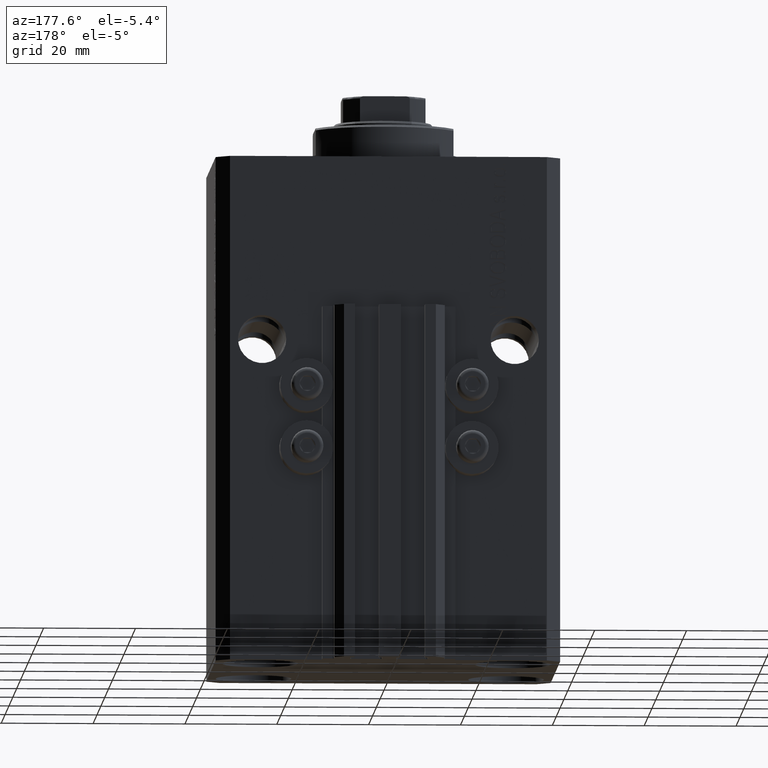
[diagram: clean part render]
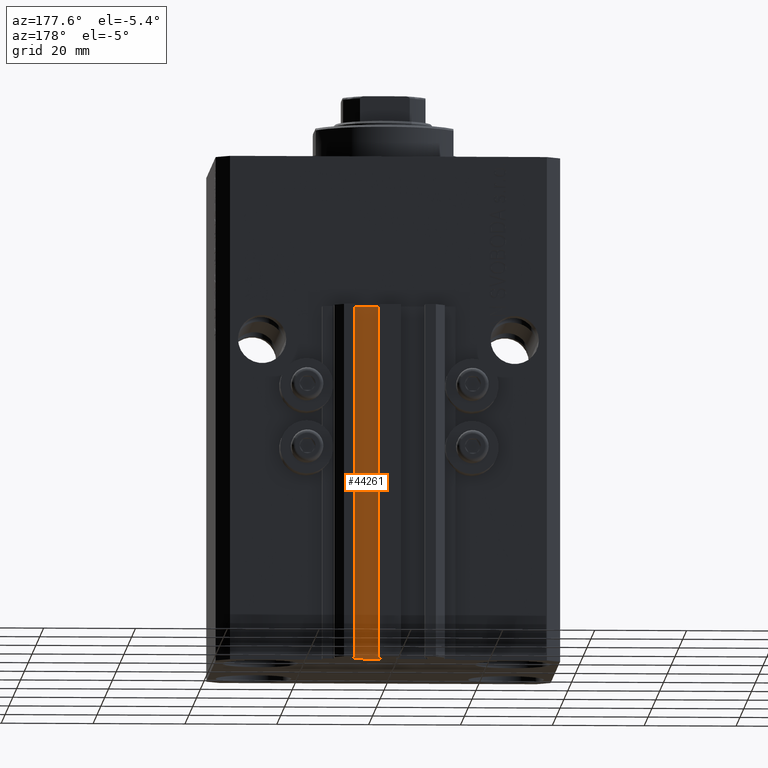
[diagram: same view with one face highlighted and labeled with its STEP entity id]
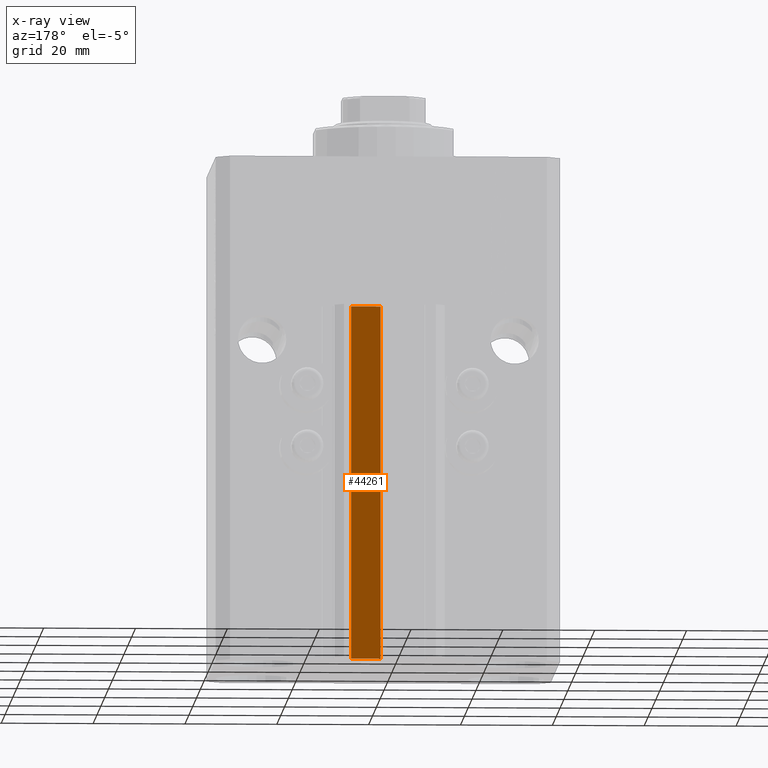
[diagram: x-ray of the same camera — body ghosted, the highlighted face saturated]
A machine part, auxiliary view. The second image highlights one B-rep face of the part: STEP entity #44261.
The next image is the same camera in x-ray: the body ghosted, the highlighted face saturated — about 0% of this face is hidden behind the body in this view.
In plain terms, the highlighted planar face has unit normal (-0, 1, 0).
Its self-contained STEP definition (entity closure, byte-faithful):
#775 = EDGE_LOOP ( 'NONE', ( #32400, #4625, #1198, #9402 ) ) ;
#1198 = ORIENTED_EDGE ( 'NONE', *, *, #23853, .T. ) ;
#4240 = CARTESIAN_POINT ( 'NONE',  ( 8.199999999999999289, 29.50000000000000711, -33.00000000000000000 ) ) ;
#4541 = LINE ( 'NONE', #26552, #39531 ) ;
#4625 = ORIENTED_EDGE ( 'NONE', *, *, #22959, .F. ) ;
#4694 = CARTESIAN_POINT ( 'NONE',  ( 1.800000000000000933, 29.50000000000000000, -33.00000000000000000 ) ) ;
#4868 = CARTESIAN_POINT ( 'NONE',  ( 8.199999999999999289, 29.50000000000000711, -33.00000000000000000 ) ) ;
#6232 = PLANE ( 'NONE',  #35660 ) ;
#6514 = VERTEX_POINT ( 'NONE', #23917 ) ;
#9402 = ORIENTED_EDGE ( 'NONE', *, *, #35813, .T. ) ;
#10118 = VERTEX_POINT ( 'NONE', #18754 ) ;
#11256 = CARTESIAN_POINT ( 'NONE',  ( 8.199999999999999289, 29.50000000000000711, -110.0000000000000000 ) ) ;
#13520 = VECTOR ( 'NONE', #38800, 1000.000000000000000 ) ;
#13700 = DIRECTION ( 'NONE',  ( 0.000000000000000000, 0.000000000000000000, 1.000000000000000000 ) ) ;
#14025 = FACE_OUTER_BOUND ( 'NONE', #775, .T. ) ;
#15962 = VECTOR ( 'NONE', #39977, 1000.000000000000000 ) ;
#18754 = CARTESIAN_POINT ( 'NONE',  ( 8.199999999999999289, 29.50000000000000711, -110.0000000000000000 ) ) ;
#19107 = VERTEX_POINT ( 'NONE', #4868 ) ;
#22959 = EDGE_CURVE ( 'NONE', #10118, #19107, #46117, .T. ) ;
#23853 = EDGE_CURVE ( 'NONE', #10118, #6514, #28370, .T. ) ;
#23917 = CARTESIAN_POINT ( 'NONE',  ( 1.800000000000000933, 29.50000000000000000, -110.0000000000000000 ) ) ;
#24123 = VECTOR ( 'NONE', #13700, 1000.000000000000000 ) ;
#24359 = CARTESIAN_POINT ( 'NONE',  ( 8.199999999999999289, 29.50000000000000711, -110.0000000000000000 ) ) ;
#24452 = CARTESIAN_POINT ( 'NONE',  ( 8.199999999999999289, 29.50000000000000711, -110.0000000000000000 ) ) ;
#26552 = CARTESIAN_POINT ( 'NONE',  ( 1.800000000000000933, 29.50000000000000000, -110.0000000000000000 ) ) ;
#27538 = DIRECTION ( 'NONE',  ( -1.084202172485504828E-15, 1.000000000000000000, 0.000000000000000000 ) ) ;
#28370 = LINE ( 'NONE', #24359, #13520 ) ;
#32254 = EDGE_CURVE ( 'NONE', #19107, #40542, #36893, .T. ) ;
#32400 = ORIENTED_EDGE ( 'NONE', *, *, #32254, .F. ) ;
#33425 = DIRECTION ( 'NONE',  ( 0.000000000000000000, 0.000000000000000000, 1.000000000000000000 ) ) ;
#35660 = AXIS2_PLACEMENT_3D ( 'NONE', #24452, #27538, #42896 ) ;
#35813 = EDGE_CURVE ( 'NONE', #6514, #40542, #4541, .T. ) ;
#36893 = LINE ( 'NONE', #4240, #15962 ) ;
#38800 = DIRECTION ( 'NONE',  ( -1.000000000000000000, -1.084202172485504828E-15, 0.000000000000000000 ) ) ;
#39531 = VECTOR ( 'NONE', #33425, 1000.000000000000000 ) ;
#39977 = DIRECTION ( 'NONE',  ( -1.000000000000000000, -1.084202172485504828E-15, 0.000000000000000000 ) ) ;
#40542 = VERTEX_POINT ( 'NONE', #4694 ) ;
#42896 = DIRECTION ( 'NONE',  ( -1.000000000000000000, -1.084202172485504828E-15, 0.000000000000000000 ) ) ;
#44261 = ADVANCED_FACE ( 'NONE', ( #14025 ), #6232, .T. ) ;
#46117 = LINE ( 'NONE', #11256, #24123 ) ;